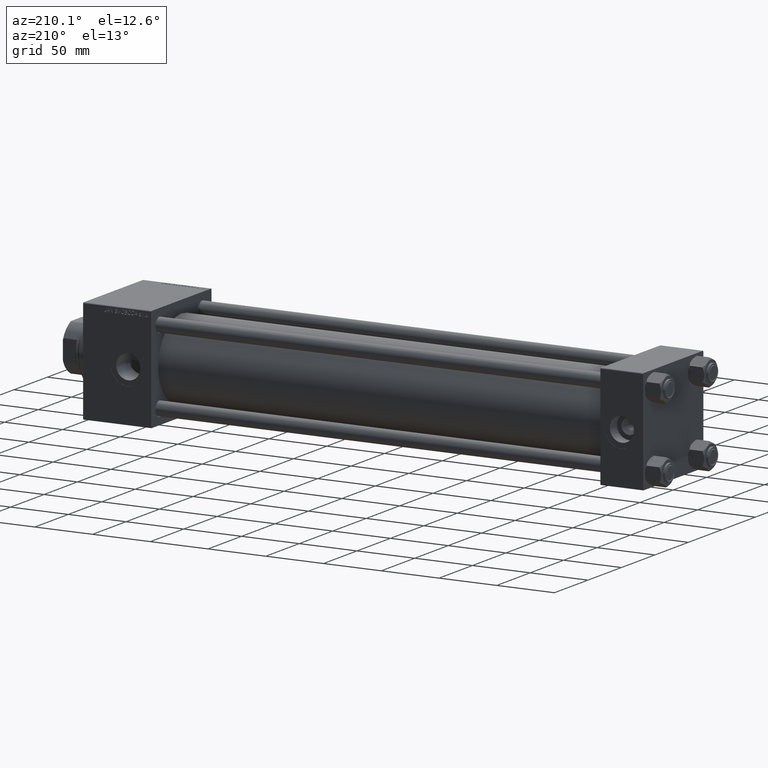
[diagram: clean part render]
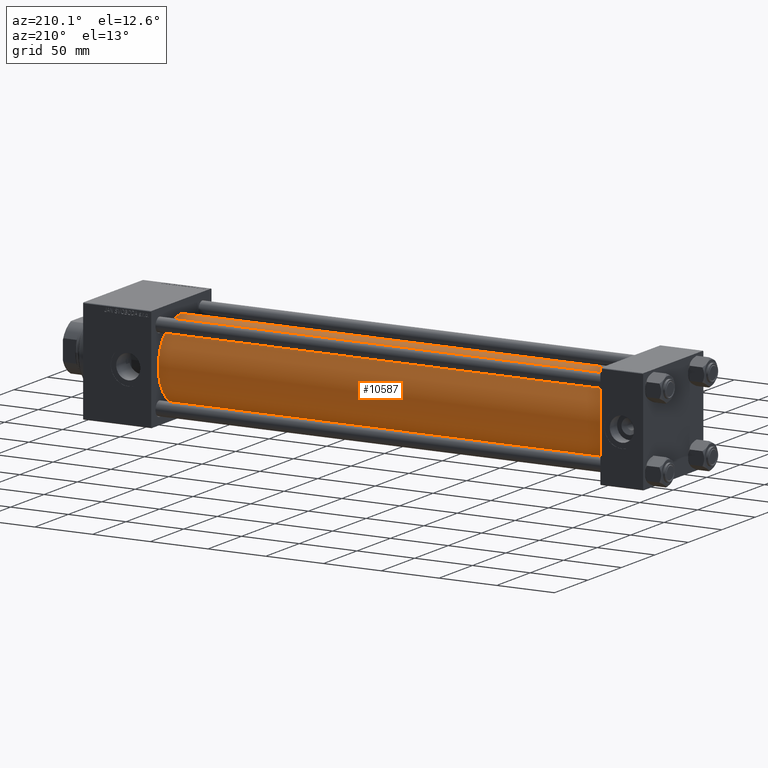
[diagram: same view with one face highlighted and labeled with its STEP entity id]
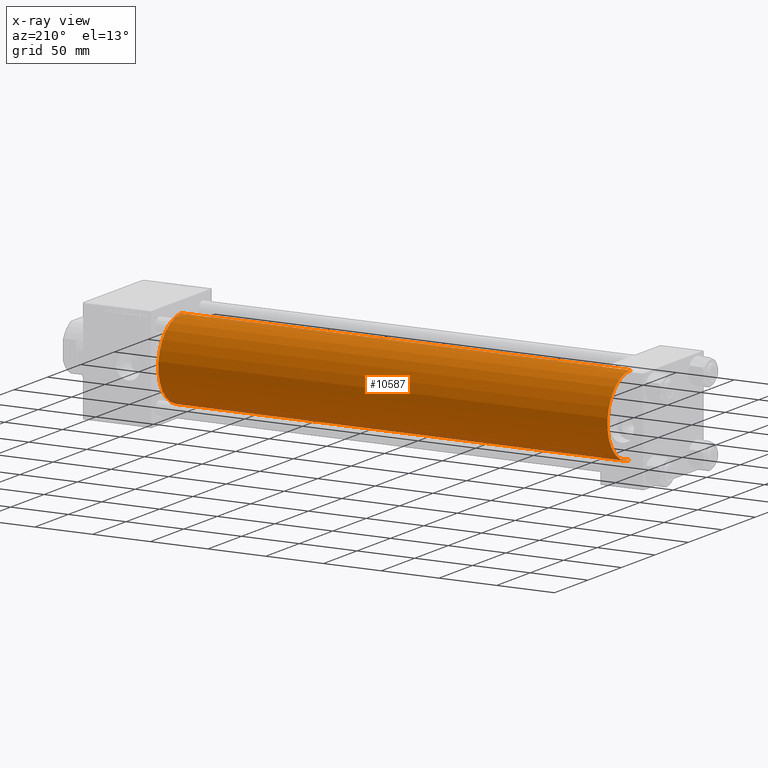
[diagram: x-ray of the same camera — body ghosted, the highlighted face saturated]
A machine part, auxiliary view. The second image highlights one B-rep face of the part: STEP entity #10587.
The next image is the same camera in x-ray: the body ghosted, the highlighted face saturated — about 0% of this face is hidden behind the body in this view.
In plain terms, the highlighted cylindrical surface (partial cylindrical patch) has radius 34.5 mm, axis along (-1, -0, -0).
Its self-contained STEP definition (entity closure, byte-faithful):
#343 = DIRECTION ( 'NONE',  ( 1.000000000000000000, 0.000000000000000000, 0.000000000000000000 ) ) ;
#622 = AXIS2_PLACEMENT_3D ( 'NONE', #6949, #37232, #37980 ) ;
#735 = CARTESIAN_POINT ( 'NONE',  ( 36.99999999999997868, 1.622946243093158675E-15, -34.50000000000000000 ) ) ;
#3135 = CYLINDRICAL_SURFACE ( 'NONE', #30434, 34.50000000000000000 ) ;
#4207 = ORIENTED_EDGE ( 'NONE', *, *, #41130, .T. ) ;
#6197 = CARTESIAN_POINT ( 'NONE',  ( 426.0000000000000000, -2.602085213965210642E-15, 34.50000000000000000 ) ) ;
#6949 = CARTESIAN_POINT ( 'NONE',  ( 36.99999999999997868, -2.602085213965210642E-15, 0.000000000000000000 ) ) ;
#8360 = ORIENTED_EDGE ( 'NONE', *, *, #43216, .F. ) ;
#8459 = CARTESIAN_POINT ( 'NONE',  ( 426.0000000000000000, -2.602085213965210642E-15, 0.000000000000000000 ) ) ;
#9613 = AXIS2_PLACEMENT_3D ( 'NONE', #8459, #343, #16344 ) ;
#10587 = ADVANCED_FACE ( 'NONE', ( #38218 ), #3135, .T. ) ;
#16344 = DIRECTION ( 'NONE',  ( 0.000000000000000000, 0.000000000000000000, -1.000000000000000000 ) ) ;
#17723 = VECTOR ( 'NONE', #37589, 1000.000000000000000 ) ;
#20450 = EDGE_LOOP ( 'NONE', ( #8360, #49391, #4207, #46272 ) ) ;
#20738 = CARTESIAN_POINT ( 'NONE',  ( 426.0000000000000000, 1.622946243093158675E-15, -34.50000000000000000 ) ) ;
#21003 = EDGE_CURVE ( 'NONE', #42062, #25312, #47898, .T. ) ;
#21721 = VERTEX_POINT ( 'NONE', #31784 ) ;
#24515 = CARTESIAN_POINT ( 'NONE',  ( 426.0000000000000000, 1.622946243093158675E-15, -34.50000000000000000 ) ) ;
#25312 = VERTEX_POINT ( 'NONE', #735 ) ;
#30434 = AXIS2_PLACEMENT_3D ( 'NONE', #38729, #34158, #33913 ) ;
#31784 = CARTESIAN_POINT ( 'NONE',  ( 36.99999999999997868, -2.602085213965210642E-15, 34.50000000000000000 ) ) ;
#32685 = VECTOR ( 'NONE', #40035, 1000.000000000000000 ) ;
#33528 = CARTESIAN_POINT ( 'NONE',  ( 426.0000000000000000, -2.602085213965210642E-15, 34.50000000000000000 ) ) ;
#33913 = DIRECTION ( 'NONE',  ( 0.000000000000000000, 0.000000000000000000, 1.000000000000000000 ) ) ;
#34158 = DIRECTION ( 'NONE',  ( -1.000000000000000000, -0.000000000000000000, -0.000000000000000000 ) ) ;
#37232 = DIRECTION ( 'NONE',  ( 1.000000000000000000, -0.000000000000000000, 0.000000000000000000 ) ) ;
#37589 = DIRECTION ( 'NONE',  ( -1.000000000000000000, -0.000000000000000000, -0.000000000000000000 ) ) ;
#37980 = DIRECTION ( 'NONE',  ( 0.000000000000000000, 0.000000000000000000, 1.000000000000000000 ) ) ;
#38218 = FACE_OUTER_BOUND ( 'NONE', #20450, .T. ) ;
#38729 = CARTESIAN_POINT ( 'NONE',  ( 426.0000000000000000, -2.602085213965210642E-15, 0.000000000000000000 ) ) ;
#39206 = EDGE_CURVE ( 'NONE', #40298, #21721, #41914, .T. ) ;
#40035 = DIRECTION ( 'NONE',  ( -1.000000000000000000, -0.000000000000000000, -0.000000000000000000 ) ) ;
#40298 = VERTEX_POINT ( 'NONE', #6197 ) ;
#41130 = EDGE_CURVE ( 'NONE', #25312, #21721, #44567, .T. ) ;
#41914 = LINE ( 'NONE', #33528, #17723 ) ;
#42062 = VERTEX_POINT ( 'NONE', #20738 ) ;
#43216 = EDGE_CURVE ( 'NONE', #42062, #40298, #44536, .T. ) ;
#44536 = CIRCLE ( 'NONE', #9613, 34.50000000000000000 ) ;
#44567 = CIRCLE ( 'NONE', #622, 34.50000000000000000 ) ;
#46272 = ORIENTED_EDGE ( 'NONE', *, *, #39206, .F. ) ;
#47898 = LINE ( 'NONE', #24515, #32685 ) ;
#49391 = ORIENTED_EDGE ( 'NONE', *, *, #21003, .T. ) ;